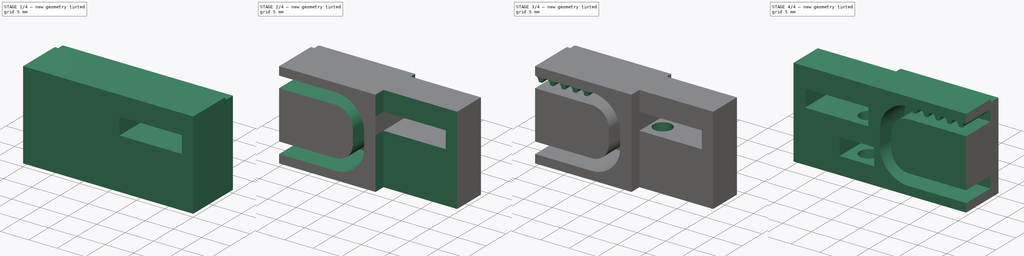
[diagram: build sequence overview — one tinted view per stage of 4, left to right]
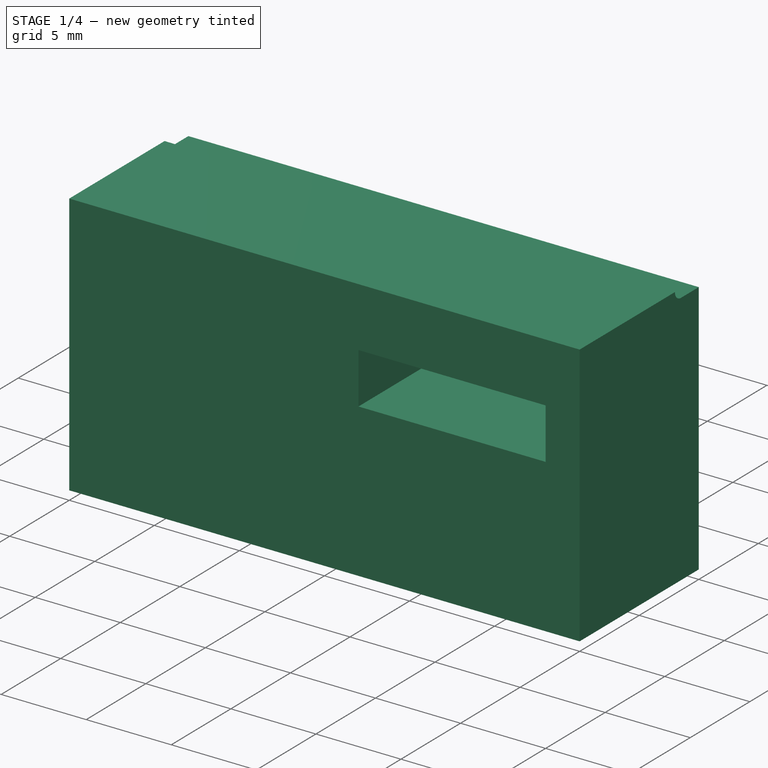
[diagram: stage 1 of 4 — iso view after this stage's code; geometry added in this stage tinted green]
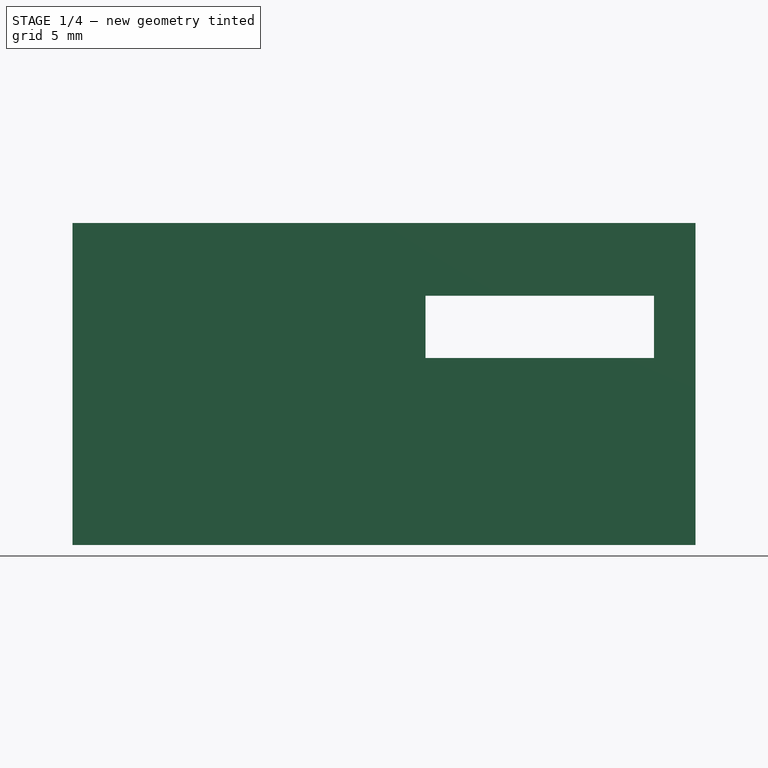
[diagram: stage 1 of 4 — front view after this stage's code; geometry added in this stage tinted green]
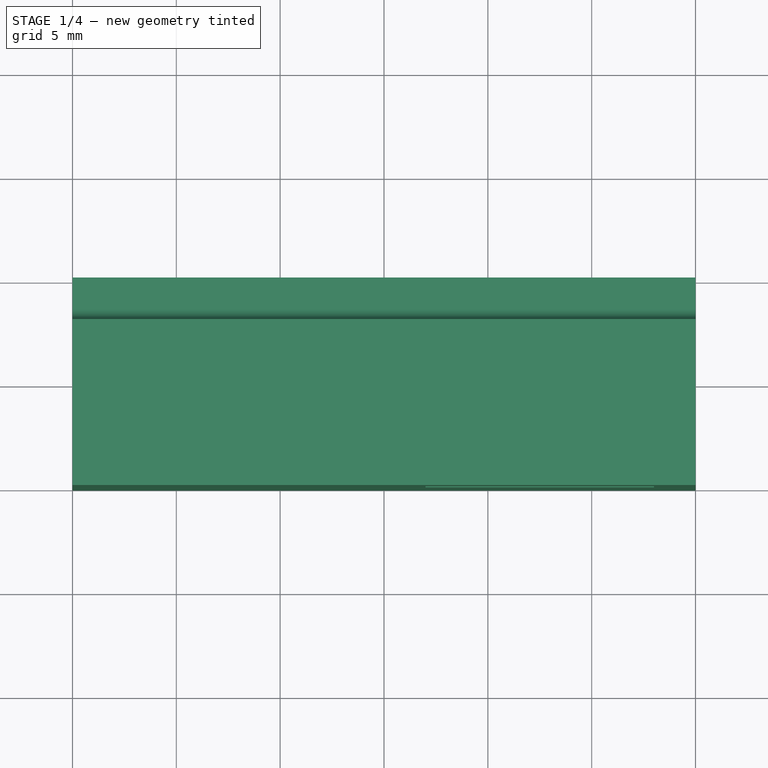
[diagram: stage 1 of 4 — top view after this stage's code; geometry added in this stage tinted green]
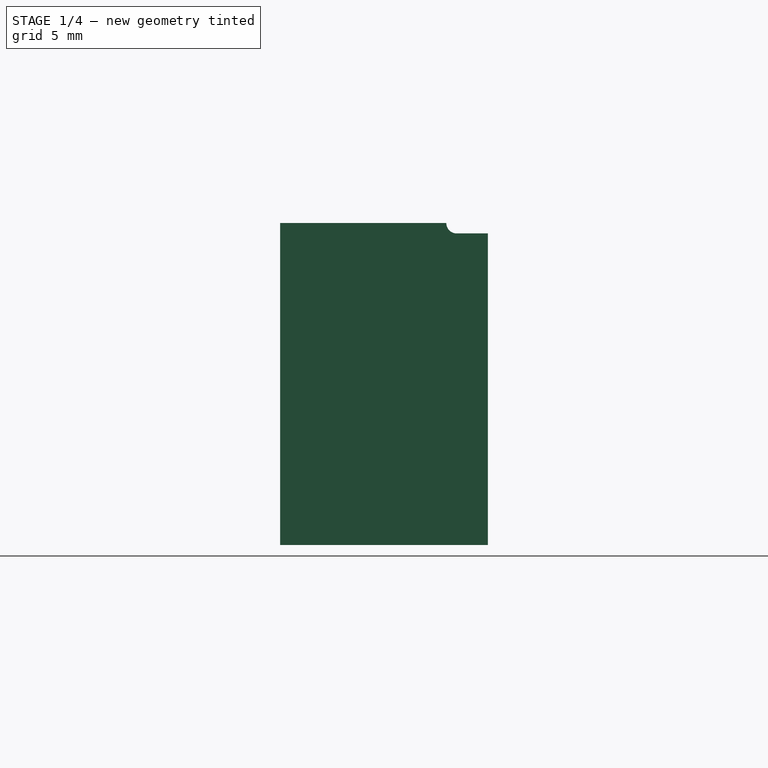
[diagram: stage 1 of 4 — right view after this stage's code; geometry added in this stage tinted green]
FCSTD DOCUMENT  (FreeCAD 0.18R13661 (Git))
Label: RightBeltLock
License: All rights reserved
LicenseURL: http://en.wikipedia.org/wiki/All_rights_reserved
objects: Sketcher::SketchObject×11, PartDesign::Plane×9, PartDesign::Pocket×8, PartDesign::Pad×2, PartDesign::Body×1, Part::Mirroring×1
note: 42 computed .brp shape members not serialized (recipe doc carries the construction recipe); baked Part::Feature solids carry a one-line shape summary decoded from their .brp

FEATURE [Sketcher::SketchObject] Sketch  label="BaseSketch"
  MapMode = 5
  Placement = pos=(0,0,0) rot=(0.57735,0.57735,0.57735;2.0944rad)
  Support = -> [YZ_Plane]
  sketch-geometry (4):
    g0: LineSegment StartX=0 StartY=0 StartZ=0 EndX=10 EndY=0 EndZ=0
    g1: LineSegment StartX=10 StartY=0 StartZ=0 EndX=10 EndY=15.5 EndZ=0
    g2: LineSegment StartX=10 StartY=15.5 StartZ=0 EndX=0 EndY=15.5 EndZ=0
    g3: LineSegment StartX=0 StartY=15.5 StartZ=0 EndX=0 EndY=0 EndZ=0
  constraints (11):
    c: Horizontal(g0)
    c: Distance(g2,g1) = 10
    c: Distance(g2,g-1) = 15.5
    c: Coincident(g0,g3)
    c: Coincident(g0,g-1)
    c: Equal(g3,g1)
    c: Equal(g0,g2)
    c: Perpendicular(g0,g3)
    c: Coincident(g0,g1)
    c: Coincident(g1,g2)
    c: Coincident(g2,g3)
FEATURE [PartDesign::Pad] Pad  label="BasePad"
  Length = 30
  Length2 = 100
  Placement = pos=(0,0,0) rot=(0.57735,0.57735,0.57735;2.0944rad)
  Profile = -> Sketch
  Type = 0
FEATURE [PartDesign::Plane] DatumPlane001  label="Facet2Plane"
  AttachmentOffset = pos=(0,0,0) rot=(0,0,1;1.5708rad)
  MapMode = 6
  Placement = pos=(-1e-12,10,15.5) rot=(-0.57735,-0.57735,0.57735;2.0944rad)
  Support = -> [Pad]
FEATURE [Sketcher::SketchObject] Sketch002  label="Facet2ASketch"
  MapMode = 5
  Placement = pos=(-1e-12,10,15.5) rot=(0.57735,0.57735,-0.57735;4.18879rad)
  Support = -> [DatumPlane001]
  sketch-geometry (5):
    g0: ArcOfCircle CenterX=0 CenterY=0 CenterZ=0 NormalX=0 NormalY=0 NormalZ=1 AngleXU=0 Radius=0.5 StartAngle=4.71239 EndAngle=7.85398
    g1: ArcOfCircle CenterX=-1.5 CenterY=0 CenterZ=0 NormalX=0 NormalY=0 NormalZ=1 AngleXU=0 Radius=0.5 StartAngle=1.5708 EndAngle=4.71239
    g2: LineSegment StartX=0 StartY=0.5 StartZ=0 EndX=-1.5 EndY=0.5 EndZ=0
    g3: LineSegment StartX=0 StartY=-0.5 StartZ=0 EndX=-1.5 EndY=-0.5 EndZ=0
    g4: GeomPoint X=-2 Y=0 Z=0
  constraints (11):
    c: Tangent(g0,g3) = 1.5708
    c: Tangent(g0,g2) = -1.5708
    c: Tangent(g2,g1) = -1.5708
    c: Tangent(g3,g1) = 1.5708
    c: Horizontal(g2)
    c: Equal(g0,g1)
    c: Coincident(g0,g-1)
    c: PointOnObject(g4,g-1)
    c: PointOnObject(g4,g1)
    c: Distance(g-1,g4) = 2
    c: DistanceY(g0,g-1) = 0.5
FEATURE [PartDesign::Pocket] Pocket001  label="Facet2APocket"
  BaseFeature = -> Pad
  Length = 5
  Length2 = 100
  Placement = pos=(0,0,0) rot=(0.57735,0.57735,0.57735;2.0944rad)
  Profile = -> Sketch002
  Type = 1
FEATURE [PartDesign::Plane] DatumPlane002  label="ClampPlane"
  MapMode = 6
  Placement = pos=(30,-2e-12,15.5) rot=(0.57735,0.57735,-0.57735;2.0944rad)
  Support = -> [Pad]
FEATURE [Sketcher::SketchObject] Sketch003  label="ClampSketch"
  MapMode = 5
  Placement = pos=(30,-2e-12,15.5) rot=(0.57735,0.57735,-0.57735;2.0944rad)
  Support = -> [DatumPlane002]
  sketch-geometry (8):
    g0: LineSegment StartX=6.5 StartY=-2 StartZ=0 EndX=3.5 EndY=-2 EndZ=0
    g1: LineSegment StartX=3.5 StartY=-2 StartZ=0 EndX=3.5 EndY=-13 EndZ=0
    g2: LineSegment StartX=6.5 StartY=-2 StartZ=0 EndX=6.5 EndY=-13 EndZ=0
    g3: LineSegment StartX=6.5 StartY=-13 StartZ=0 EndX=3.5 EndY=-13 EndZ=0
    g4: LineSegment StartX=3.5 StartY=0 StartZ=0 EndX=6.5 EndY=0 EndZ=0
    g5: LineSegment StartX=6.5 StartY=0 StartZ=0 EndX=6.5 EndY=1.99064 EndZ=0
    g6: LineSegment StartX=6.5 StartY=1.99064 StartZ=0 EndX=3.5 EndY=1.99064 EndZ=0
    g7: LineSegment StartX=3.5 StartY=1.99064 StartZ=0 EndX=3.5 EndY=0 EndZ=0
  constraints (23):
    c: Coincident(g0,g1)
    c: Horizontal(g0)
    c: Vertical(g1)
    c: Distance(g0) = 3
    c: Vertical(g2)
    c: Coincident(g3,g2)
    c: Coincident(g3,g1)
    c: Horizontal(g3)
    c: Coincident(g2,g0)
    c: Coincident(g4,g5)
    c: Coincident(g5,g6)
    c: Coincident(g6,g7)
    c: Coincident(g7,g4)
    c: Horizontal(g4)
    c: Horizontal(g6)
    c: Vertical(g5)
    c: Vertical(g7)
    c: PointOnObject(g4,g-1)
    c: DistanceX(g0,g4) = 0
    c: DistanceX(g0,g4) = 0
    c: DistanceY(g0,g-1) = 2
    c: DistanceX(g-1,g0) = 3.5
    c: Distance(g0,g1) = 11
FEATURE [PartDesign::Pocket] Pocket002  label="ClampPocket"
  BaseFeature = -> Pocket001
  Length = 5
  Length2 = 100
  Placement = pos=(0,0,0) rot=(0.57735,0.57735,0.57735;2.0944rad)
  Profile = -> Sketch003
  Type = 1
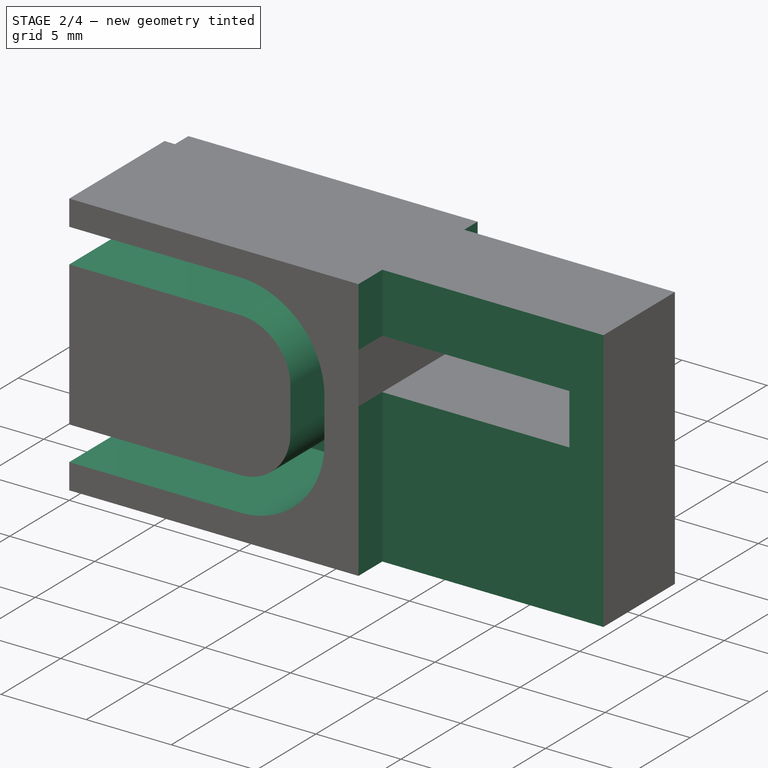
[diagram: stage 2 of 4 — iso view after this stage's code; geometry added in this stage tinted green]
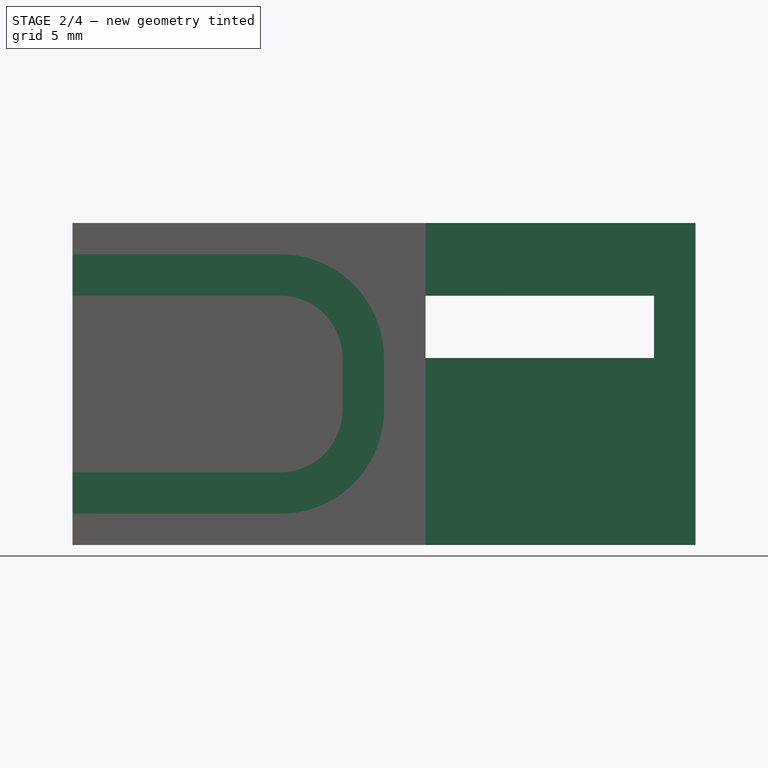
[diagram: stage 2 of 4 — front view after this stage's code; geometry added in this stage tinted green]
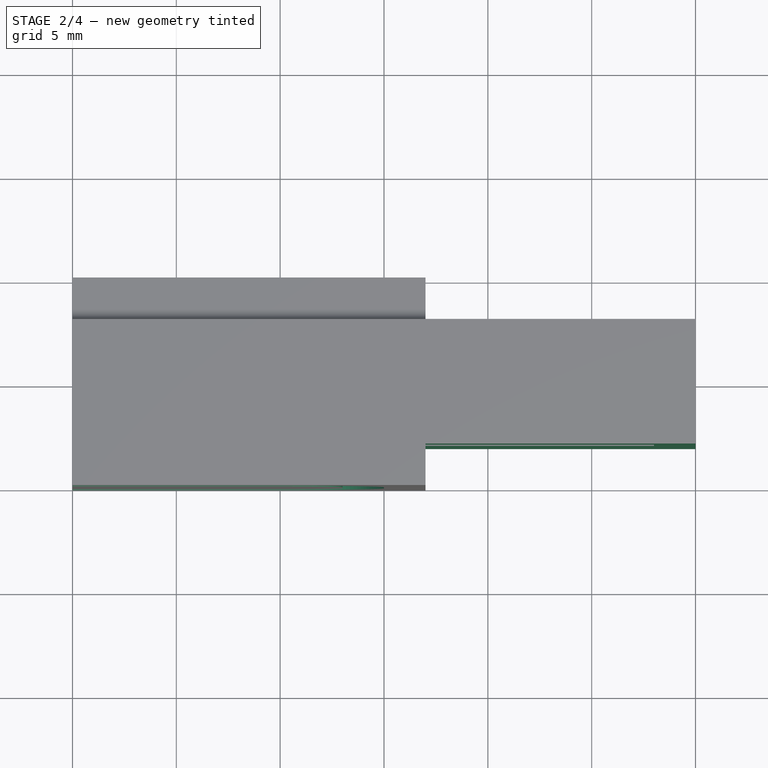
[diagram: stage 2 of 4 — top view after this stage's code; geometry added in this stage tinted green]
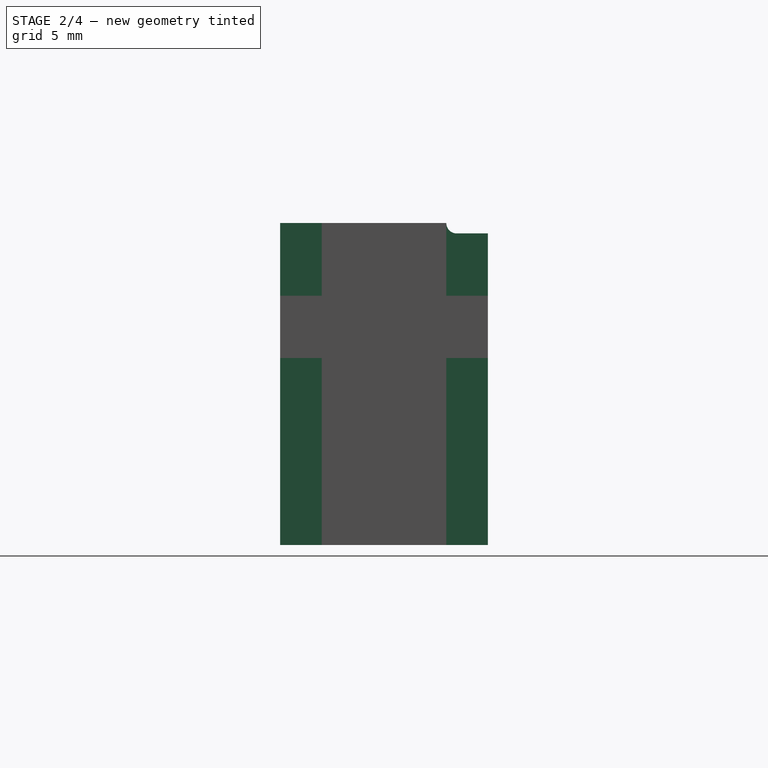
[diagram: stage 2 of 4 — right view after this stage's code; geometry added in this stage tinted green]
FEATURE [PartDesign::Plane] DatumPlane003  label="ClampCut1Plane"
  MapMode = 6
  Placement = pos=(30,-2e-12,15.5) rot=(0,0,-1;1.5708rad)
  Support = -> [Pad]
FEATURE [Sketcher::SketchObject] Sketch004  label="ClampCut1Sketch"
  MapMode = 5
  Placement = pos=(30,-2e-12,15.5) rot=(0,0,-1;1.5708rad)
  Support = -> [DatumPlane003]
  sketch-geometry (4):
    g0: LineSegment StartX=0 StartY=0 StartZ=0 EndX=-2 EndY=0 EndZ=0
    g1: LineSegment StartX=-2 StartY=0 StartZ=0 EndX=-2 EndY=-13 EndZ=0
    g2: LineSegment StartX=-2 StartY=-13 StartZ=0 EndX=0 EndY=-13 EndZ=0
    g3: LineSegment StartX=0 StartY=-13 StartZ=0 EndX=0 EndY=0 EndZ=0
  constraints (11):
    c: Coincident(g0,g1)
    c: Coincident(g1,g2)
    c: Coincident(g2,g3)
    c: Coincident(g3,g0)
    c: Horizontal(g0)
    c: Horizontal(g2)
    c: Vertical(g1)
    c: Vertical(g3)
    c: Coincident(g0,g-1)
    c: DistanceY(g2,g-1) = 13
    c: DistanceX(g0,g-1) = 2
FEATURE [PartDesign::Pocket] Pocket003  label="ClampCut1Pocket"
  BaseFeature = -> Pocket002
  Length = 5
  Length2 = 100
  Placement = pos=(0,0,0) rot=(0.57735,0.57735,0.57735;2.0944rad)
  Profile = -> Sketch004
  Type = 1
FEATURE [PartDesign::Plane] DatumPlane004  label="ClampCut2Plane"
  MapMode = 6
  Placement = pos=(30,10,15.5) rot=(0,0,-1;1.5708rad)
  Support = -> [Pad]
FEATURE [Sketcher::SketchObject] Sketch005  label="ClampCut2Sketch"
  MapMode = 5
  Placement = pos=(30,10,15.5) rot=(0,0,-1;1.5708rad)
  Support = -> [DatumPlane004]
  sketch-geometry (4):
    g0: LineSegment StartX=0 StartY=0 StartZ=0 EndX=2 EndY=0 EndZ=0
    g1: LineSegment StartX=2 StartY=0 StartZ=0 EndX=2 EndY=-13 EndZ=0
    g2: LineSegment StartX=2 StartY=-13 StartZ=0 EndX=0 EndY=-13 EndZ=0
    g3: LineSegment StartX=0 StartY=-13 StartZ=0 EndX=0 EndY=0 EndZ=0
  constraints (11):
    c: Coincident(g0,g1)
    c: Coincident(g1,g2)
    c: Coincident(g2,g3)
    c: Coincident(g3,g0)
    c: Horizontal(g0)
    c: Horizontal(g2)
    c: Vertical(g1)
    c: Vertical(g3)
    c: Coincident(g0,g-1)
    c: DistanceX(g-1,g0) = 2
    c: DistanceY(g2,g-1) = 13
FEATURE [PartDesign::Pocket] Pocket004  label="ClampCut2Pocket"
  BaseFeature = -> Pocket003
  Length = 5
  Length2 = 100
  Placement = pos=(0,0,0) rot=(0.57735,0.57735,0.57735;2.0944rad)
  Profile = -> Sketch005
  Type = 1
FEATURE [PartDesign::Plane] DatumPlane005  label="BeltNotchPlane"
  MapMode = 6
  Placement = pos=(-2e-12,2e-12,15.5) rot=(0.57735,0.57735,-0.57735;2.0944rad)
  Support = -> [Pad]
FEATURE [Sketcher::SketchObject] Sketch006  label="BeltNotchSketch"
  MapMode = 5
  Placement = pos=(-2e-12,2e-12,15.5) rot=(0.57735,0.57735,-0.57735;2.0944rad)
  Support = -> [DatumPlane005]
  sketch-geometry (18):
    g0: LineSegment StartX=1.5 StartY=0 StartZ=0 EndX=3.5 EndY=0 EndZ=0
    g1: LineSegment StartX=3.5 StartY=0 StartZ=0 EndX=3.5 EndY=10 EndZ=0
    g2: LineSegment StartX=1.5 StartY=10 StartZ=0 EndX=1.5 EndY=0 EndZ=0
    g3: LineSegment StartX=12 StartY=10 StartZ=0 EndX=12 EndY=0 EndZ=0
    g4: LineSegment StartX=14 StartY=10 StartZ=0 EndX=14 EndY=0 EndZ=0
    g5: LineSegment StartX=12 StartY=0 StartZ=0 EndX=14 EndY=0 EndZ=0
    g6: ArcOfCircle CenterX=9 CenterY=10 CenterZ=0 NormalX=0 NormalY=0 NormalZ=1 AngleXU=0 Radius=3 StartAngle=0 EndAngle=1.5708
    g7: ArcOfCircle CenterX=6.5 CenterY=10 CenterZ=0 NormalX=0 NormalY=0 NormalZ=1 AngleXU=0 Radius=3 StartAngle=1.5708 EndAngle=3.14159
    g8: LineSegment [constr] StartX=6.5 StartY=10 StartZ=0 EndX=3.5 EndY=10 EndZ=0
    g9: LineSegment [constr] StartX=12 StartY=10 StartZ=0 EndX=9 EndY=10 EndZ=0
    g10: LineSegment [constr] StartX=6.5 StartY=10 StartZ=0 EndX=6.5 EndY=13 EndZ=0
    g11: LineSegment [constr] StartX=9 StartY=10 StartZ=0 EndX=9 EndY=13 EndZ=0
    g12: LineSegment StartX=6.5 StartY=13 StartZ=0 EndX=9 EndY=13 EndZ=0
    g13: ArcOfCircle CenterX=6.5 CenterY=10 CenterZ=0 NormalX=0 NormalY=0 NormalZ=1 AngleXU=0 Radius=5 StartAngle=1.5708 EndAngle=3.14159
    g14: ArcOfCircle CenterX=9 CenterY=10 CenterZ=0 NormalX=0 NormalY=0 NormalZ=1 AngleXU=0 Radius=5 StartAngle=0 EndAngle=1.5708
    g15: LineSegment StartX=6.5 StartY=15 StartZ=0 EndX=9 EndY=15 EndZ=0
    g16: LineSegment [constr] StartX=6.5 StartY=13 StartZ=0 EndX=6.5 EndY=15 EndZ=0
    g17: LineSegment [constr] StartX=9 StartY=13 StartZ=0 EndX=9 EndY=15 EndZ=0
  constraints (50):
    c: Coincident(g0,g1)
    c: Coincident(g2,g0)
    c: PointOnObject(g0,g-1)
    c: DistanceX(g-1,g0) = 1.5
    c: DistanceX(g2,g1) = 2
    c: DistanceY(g0,g2) = 10
    c: Coincident(g5,g3)
    c: Coincident(g5,g4)
    c: DistanceX(g0,g4) = 12.5
    c: Equal(g0,g5)
    c: Horizontal(g0)
    c: Perpendicular(g0,g2)
    c: Perpendicular(g0,g1)
    c: Perpendicular(g5,g3)
    c: Perpendicular(g5,g4)
    c: Equal(g2,g1)
    c: Equal(g1,g3)
    c: Equal(g3,g4)
    c: Coincident(g6,g3)
    c: Coincident(g7,g1)
    c: Coincident(g8,g7)
    c: Coincident(g8,g1)
    c: Perpendicular(g1,g8)
    c: Coincident(g9,g3)
    c: Coincident(g9,g6)
    c: Perpendicular(g3,g9)
    c: Coincident(g10,g7)
    c: Coincident(g7,g10)
    c: Angle(g10,g8) = 1.5708
    c: Distance(g8) = 3
    c: Equal(g9,g8)
    c: Coincident(g11,g6)
    c: Coincident(g11,g6)
    c: Angle(g9,g11) = 1.5708
    c: Coincident(g12,g7)
    c: Coincident(g12,g6)
    c: Perpendicular(g1,g12)
    c: Parallel(g10,g11)
    c: Coincident(g13,g7)
    c: Coincident(g13,g2)
    c: Coincident(g14,g6)
    c: Coincident(g14,g4)
    c: Coincident(g15,g13)
    c: Coincident(g15,g14)
    c: Coincident(g16,g7)
    c: Coincident(g16,g13)
    c: Coincident(g17,g6)
    c: Coincident(g17,g14)
    c: Parallel(g10,g16)
    c: Parallel(g11,g17)
FEATURE [PartDesign::Pocket] Pocket005  label="BeltNotchPocket"
  BaseFeature = -> Pocket004
  Length = 8
  Length2 = 100
  Placement = pos=(0,0,0) rot=(0.57735,0.57735,0.57735;2.0944rad)
  Profile = -> Sketch006
  Type = 0
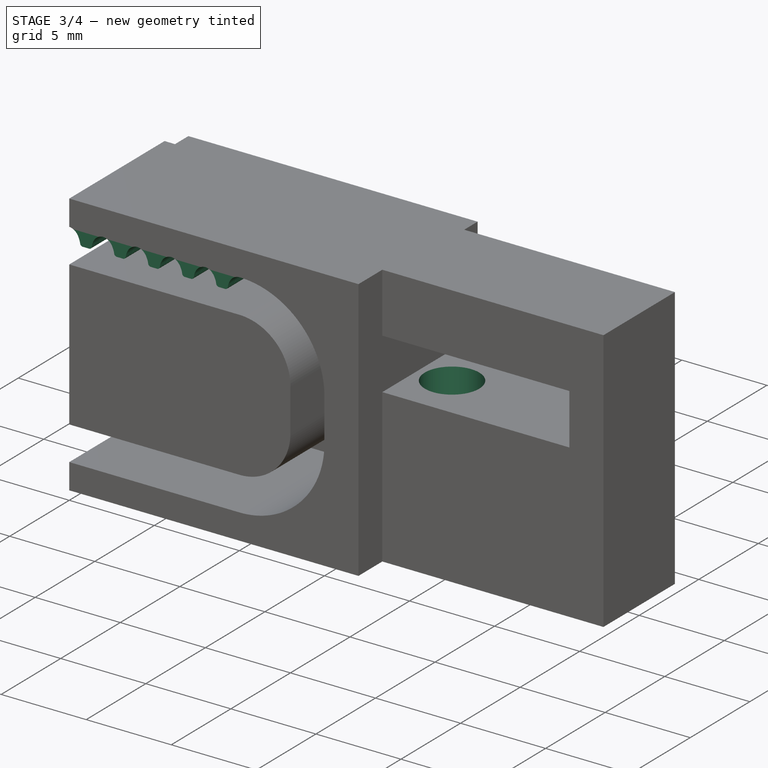
[diagram: stage 3 of 4 — iso view after this stage's code; geometry added in this stage tinted green]
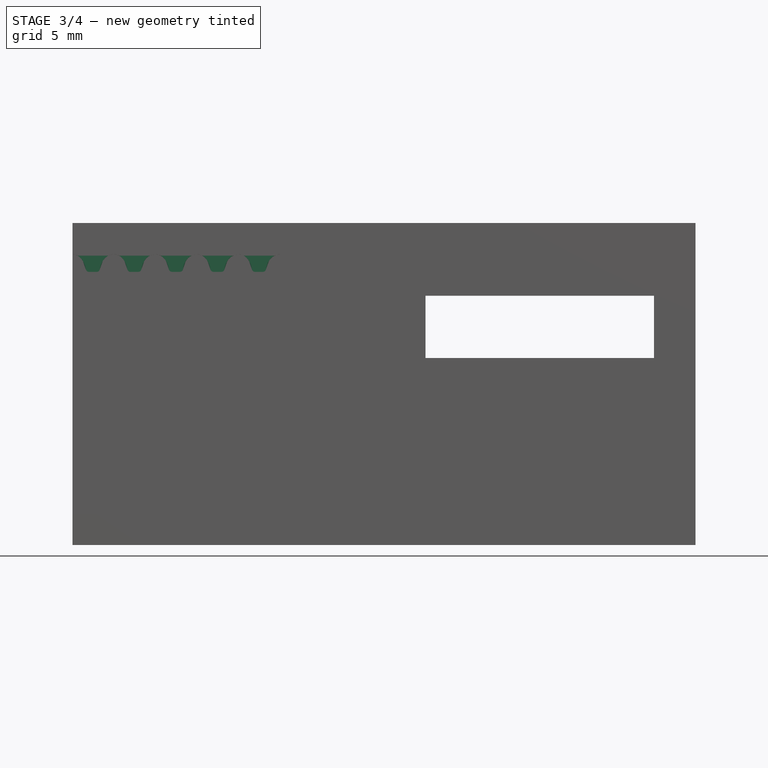
[diagram: stage 3 of 4 — front view after this stage's code; geometry added in this stage tinted green]
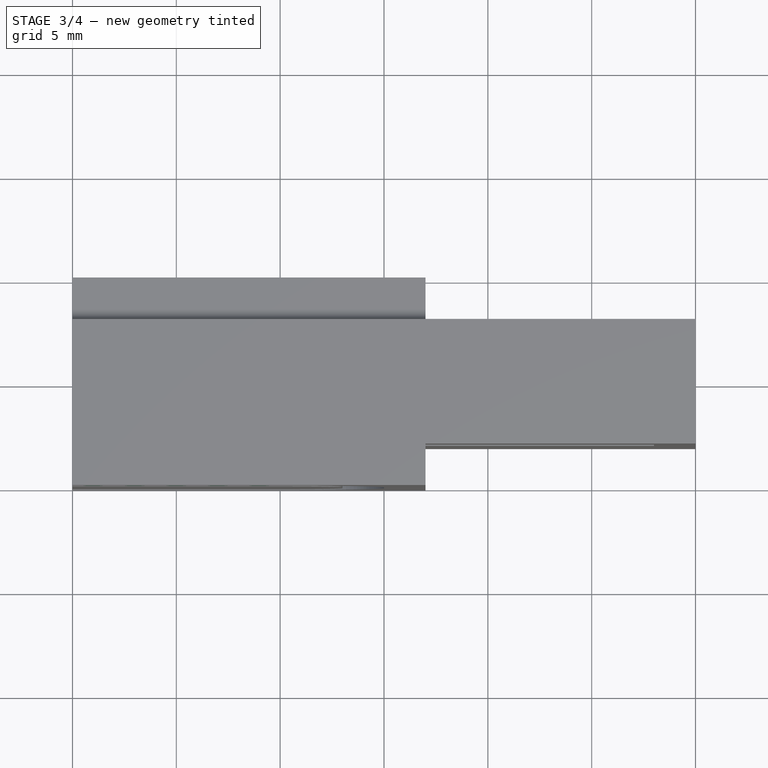
[diagram: stage 3 of 4 — top view after this stage's code; geometry added in this stage tinted green]
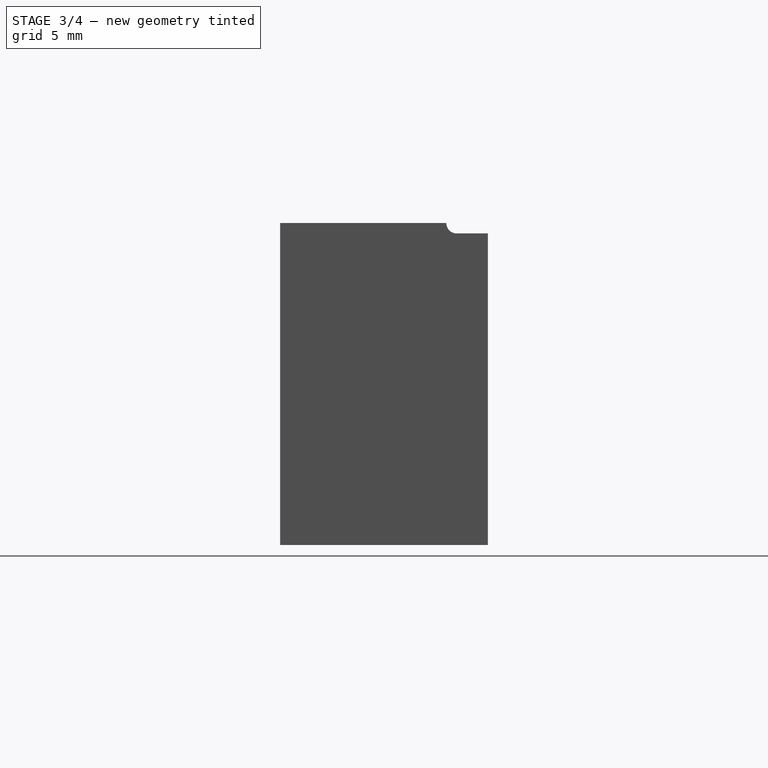
[diagram: stage 3 of 4 — right view after this stage's code; geometry added in this stage tinted green]
FEATURE [PartDesign::Plane] DatumPlane007  label="TopTeethPlane"
  MapMode = 6
  Placement = pos=(-1e-12,8,14) rot=(1,0,0;1.5708rad)
  Support = -> [Pocket005]
FEATURE [Sketcher::SketchObject] Sketch008  label="TopTeethSketch"
  MapMode = 5
  Placement = pos=(-1e-12,8,14) rot=(1,0,0;1.5708rad)
  Support = -> [DatumPlane007]
  sketch-geometry (8):
    g0: BSplineCurve PolesCount=12 KnotsCount=8 Degree=3 IsPeriodic=0
    g1: BSplineCurve PolesCount=12 KnotsCount=8 Degree=3 IsPeriodic=0
    g2: BSplineCurve PolesCount=12 KnotsCount=8 Degree=3 IsPeriodic=0
    g3: BSplineCurve PolesCount=12 KnotsCount=8 Degree=3 IsPeriodic=0
    g4: BSplineCurve PolesCount=12 KnotsCount=8 Degree=3 IsPeriodic=0
    g5: LineSegment StartX=10 StartY=0 StartZ=0 EndX=10 EndY=1 EndZ=0
    g6: LineSegment StartX=10 StartY=1 StartZ=0 EndX=0 EndY=1 EndZ=0
    g7: LineSegment StartX=0 StartY=1 StartZ=0 EndX=0 EndY=0 EndZ=0
  constraints (19):
    c: Coincident(g1,g0)
    c: PointOnObject(g0,g-1)
    c: PointOnObject(g1,g-1)
    c: PointOnObject(g2,g-1)
    c: PointOnObject(g3,g-1)
    c: PointOnObject(g4,g-1)
    c: Coincident(g5,g4)
    c: Vertical(g5)
    c: Coincident(g6,g5)
    c: Horizontal(g6)
    c: Coincident(g7,g6)
    c: Coincident(g7,g-1)
    c: Vertical(g7)
    c: Distance(g5) = 1
    c: DistanceX(g-1,g0) = 2
    c: DistanceX(g0,g1) = 2
    c: DistanceX(g1,g2) = 2
    c: DistanceX(g2,g3) = 2
    c: DistanceX(g3,g4) = 2
FEATURE [PartDesign::Pad] Pad001  label="TopTeethPad"
  BaseFeature = -> Pocket005
  Length = 11
  Length2 = 100
  Placement = pos=(0,0,0) rot=(0.57735,0.57735,0.57735;2.0944rad)
  Profile = -> Sketch008
  Type = 2
FEATURE [PartDesign::Plane] DatumPlane008  label="ClampSkrewHolePlane"
  MapMode = 6
  Placement = pos=(30,-3e-12,3e-12) rot=(0.707107,0.707107,0;3.14159rad)
  Support = -> [Pad]
FEATURE [Sketcher::SketchObject] Sketch010  label="ClampHoleSketch"
  MapMode = 5
  Placement = pos=(30,-3e-12,3e-12) rot=(0.707107,0.707107,0;3.14159rad)
  Support = -> [DatumPlane008]
  sketch-geometry (1):
    g0: Circle CenterX=5 CenterY=-11 CenterZ=0 NormalX=0 NormalY=0 NormalZ=1 AngleXU=0 Radius=1.6
  constraints (3):
    c: DistanceX(g-1,g0) = 5
    c: DistanceY(g0,g-1) = 11
    c: Radius(g0) = 1.6
FEATURE [PartDesign::Pocket] Pocket006  label="ClampSkrewHolePocket"
  BaseFeature = -> Pad001
  Length = 5
  Length2 = 100
  Offset = 1
  Placement = pos=(0,0,0) rot=(0.57735,0.57735,0.57735;2.0944rad)
  Profile = -> Sketch010
  Type = 2
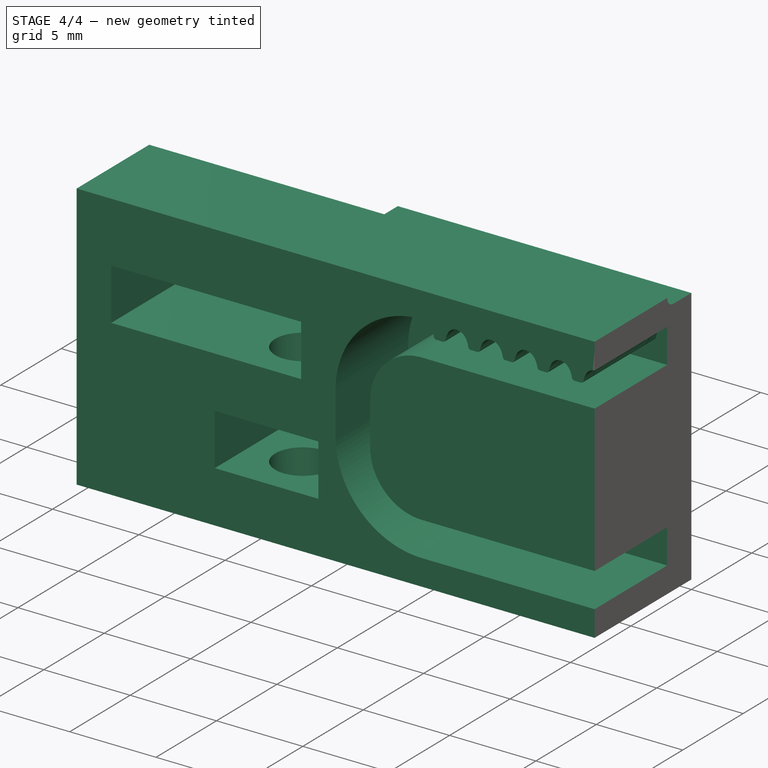
[diagram: stage 4 of 4 — iso view after this stage's code; geometry added in this stage tinted green]
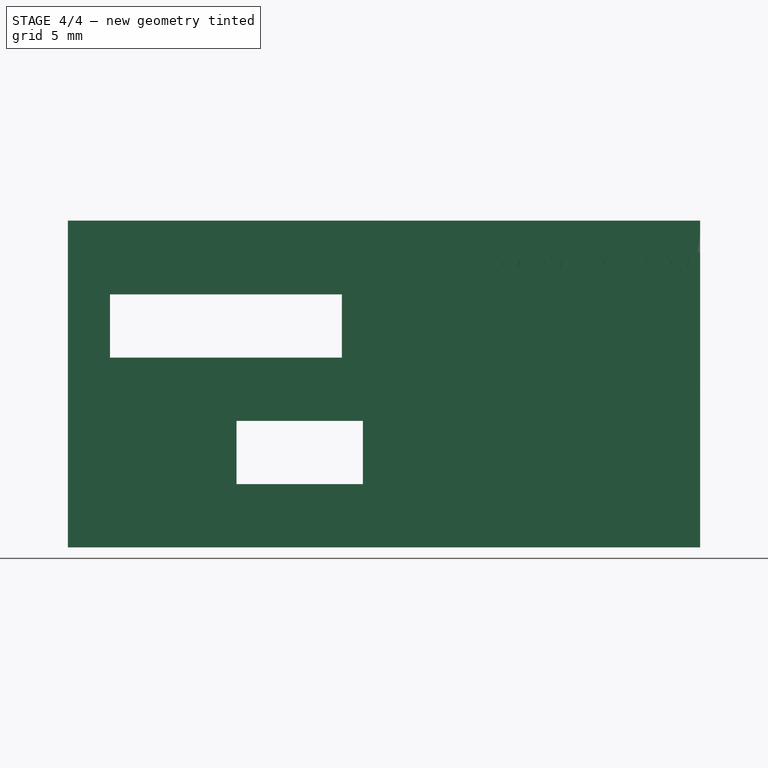
[diagram: stage 4 of 4 — front view after this stage's code; geometry added in this stage tinted green]
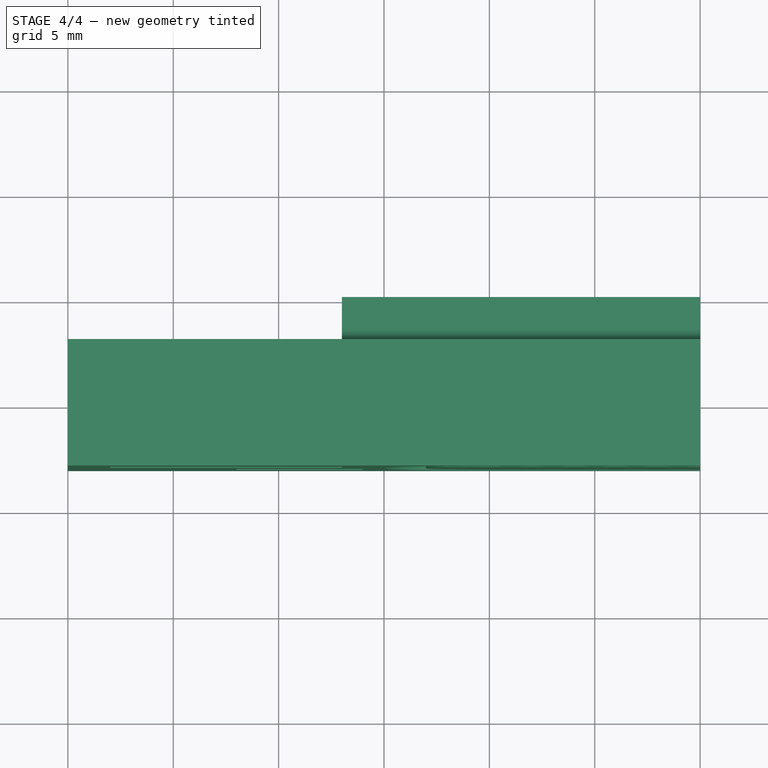
[diagram: stage 4 of 4 — top view after this stage's code; geometry added in this stage tinted green]
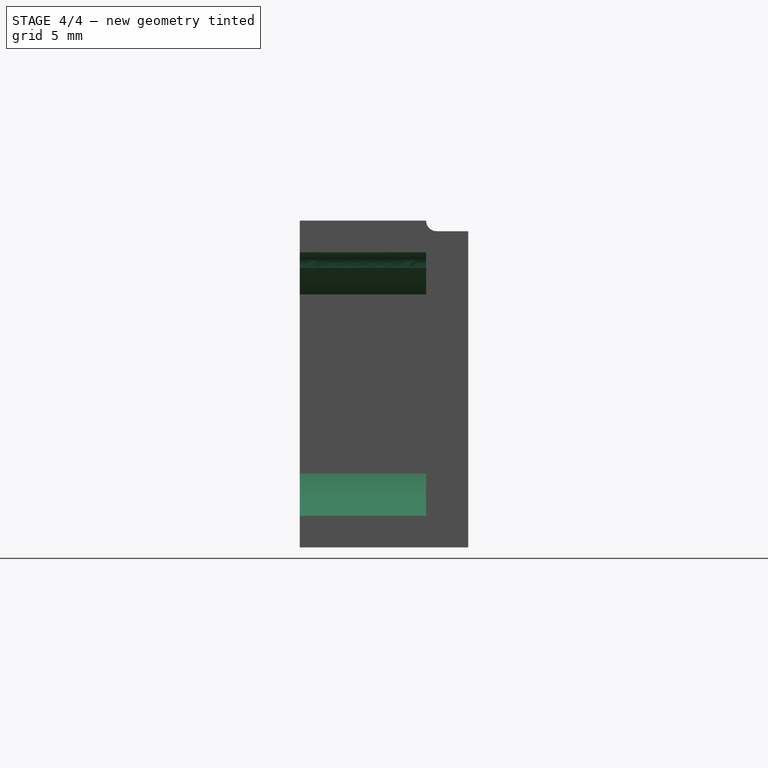
[diagram: stage 4 of 4 — right view after this stage's code; geometry added in this stage tinted green]
FEATURE [Sketcher::SketchObject] Sketch012  label="BottomTeethSketch"
  MapMode = 5
  Placement = pos=(1e-12,8,2.4) rot=(1,0,0;1.5708rad)
  sketch-geometry (8):
    g0: LineSegment StartX=0.75 StartY=0 StartZ=0 EndX=0 EndY=0 EndZ=0
    g1: BSplineCurve PolesCount=12 KnotsCount=8 Degree=3 IsPeriodic=0
    g2: BSplineCurve PolesCount=12 KnotsCount=8 Degree=3 IsPeriodic=0
    g3: BSplineCurve PolesCount=12 KnotsCount=8 Degree=3 IsPeriodic=0
    g4: BSplineCurve PolesCount=12 KnotsCount=8 Degree=3 IsPeriodic=0
    g5: LineSegment StartX=8.75 StartY=0 StartZ=0 EndX=8.75 EndY=-1 EndZ=0
    g6: LineSegment StartX=8.75 StartY=-1 StartZ=0 EndX=0 EndY=-1 EndZ=0
    g7: LineSegment StartX=0 StartY=-1 StartZ=0 EndX=0 EndY=0 EndZ=0
  constraints (23):
    c: Distance(g0) = 0.75
    c: Coincident(g0,g-1)
    c: Coincident(g4,g0)
    c: PointOnObject(g1,g-1)
    c: PointOnObject(g1,g-1)
    c: PointOnObject(g2,g-1)
    c: PointOnObject(g3,g-1)
    c: PointOnObject(g0,g-1)
    c: Coincident(g1,g4)
    c: Coincident(g1,g2)
    c: Coincident(g2,g3)
    c: Coincident(g5,g3)
    c: Vertical(g5)
    c: Coincident(g6,g5)
    c: Horizontal(g6)
    c: Coincident(g7,g6)
    c: Coincident(g7,g-1)
    c: DistanceX(g0,g1) = 2
    c: DistanceX(g1,g1) = 2
    c: DistanceX(g1,g2) = 2
    c: DistanceX(g2,g3) = 2
    c: DistanceY(g5,g5) = 1
    c: Vertical(g7)
FEATURE [PartDesign::Plane] DatumPlane011  label="BeltNotchCutPlane"
  MapMode = 6
  Placement = pos=(17,2,15.5) rot=(0.57735,-0.57735,0.57735;4.18879rad)
  Support = -> [Pocket003]
FEATURE [Sketcher::SketchObject] Sketch013  label="BeltNotchCutSketch"
  MapMode = 5
  Placement = pos=(17,2,15.5) rot=(0.57735,-0.57735,0.57735;4.18879rad)
  Support = -> [DatumPlane011]
  sketch-geometry (4):
    g0: LineSegment StartX=0 StartY=0 StartZ=0 EndX=2 EndY=0 EndZ=0
    g1: LineSegment StartX=2 StartY=0 StartZ=0 EndX=2 EndY=20 EndZ=0
    g2: LineSegment StartX=2 StartY=20 StartZ=0 EndX=0 EndY=20 EndZ=0
    g3: LineSegment StartX=0 StartY=20 StartZ=0 EndX=0 EndY=0 EndZ=0
  constraints (11):
    c: Coincident(g0,g1)
    c: Coincident(g1,g2)
    c: Coincident(g2,g3)
    c: Coincident(g3,g0)
    c: Horizontal(g0)
    c: Horizontal(g2)
    c: Vertical(g1)
    c: Vertical(g3)
    c: Coincident(g0,g-1)
    c: Distance(g0) = 2
    c: Distance(g3) = 20
FEATURE [PartDesign::Pocket] Pocket008  label="BeltNotchCutPocket"
  BaseFeature = -> Pocket006
  Length = 5
  Length2 = 100
  Placement = pos=(0,0,0) rot=(0.57735,0.57735,0.57735;2.0944rad)
  Profile = -> Sketch013
  Type = 1
FEATURE [PartDesign::Plane] DatumPlane012  label="ClampNutHolePlane"
  AttachmentOffset = pos=(0,0,-3) rot=(0,0,1;0rad)
  MapMode = 6
  Placement = pos=(30,-3e-12,3) rot=(0.707107,0.707107,0;3.14159rad)
  Support = -> [Pad]
FEATURE [Sketcher::SketchObject] Sketch014  label="ClampNutHoleSketch"
  MapMode = 5
  Placement = pos=(30,-3e-12,3) rot=(0.707107,0.707107,0;3.14159rad)
  Support = -> [DatumPlane012]
  sketch-geometry (9):
    g0: GeomPoint X=5 Y=-11 Z=0
    g1: LineSegment [constr] StartX=8 StartY=-14 StartZ=0 EndX=8 EndY=-8 EndZ=0
    g2: LineSegment StartX=8 StartY=-8 StartZ=0 EndX=2 EndY=-8 EndZ=0
    g3: LineSegment StartX=2 StartY=-8 StartZ=0 EndX=2 EndY=-14 EndZ=0
    g4: LineSegment StartX=2 StartY=-14 StartZ=0 EndX=8 EndY=-14 EndZ=0
    g5: Circle [constr] CenterX=5 CenterY=-11 CenterZ=0 NormalX=0 NormalY=0 NormalZ=1 AngleXU=0 Radius=4.24264
    g6: LineSegment StartX=8 StartY=-8 StartZ=0 EndX=18 EndY=-8 EndZ=0
    g7: LineSegment StartX=18 StartY=-8 StartZ=0 EndX=18 EndY=-14 EndZ=0
    g8: LineSegment StartX=18 StartY=-14 StartZ=0 EndX=8 EndY=-14 EndZ=0
  constraints (24):
    c: DistanceY(g0,g-1) = 11
    c: Coincident(g1,g2)
    c: Coincident(g2,g3)
    c: Coincident(g3,g4)
    c: Coincident(g4,g1)
    c: Equal(g1,g2)
    c: Equal(g1,g3)
    c: Equal(g1,g4)
    c: PointOnObject(g1,g5)
    c: PointOnObject(g2,g5)
    c: PointOnObject(g3,g5)
    c: PointOnObject(g4,g5)
    c: Coincident(g5,g0)
    c: Horizontal(g2)
    c: Distance(g2) = 6
    c: DistanceX(g-1,g0) = 5
    c: Coincident(g6,g1)
    c: Coincident(g7,g6)
    c: Coincident(g8,g7)
    c: Coincident(g8,g1)
    c: Perpendicular(g1,g6)
    c: Perpendicular(g6,g7)
    c: Perpendicular(g8,g7)
    c: Distance(g6) = 10
FEATURE [PartDesign::Pocket] Pocket009  label="ClampNutHolePocket"
  BaseFeature = -> Pocket008
  Length = 3
  Length2 = 100
  Placement = pos=(0,0,0) rot=(0.57735,0.57735,0.57735;2.0944rad)
  Profile = -> Sketch014
  Type = 0
FEATURE [PartDesign::Body] Body  label="FrameBase"
  Group = -> [Sketch,Pad,DatumPlane001,Sketch002,Pocket001,DatumPlane002,Sketch003,Pocket002,DatumPlane003,Sketch004,Pocket003,DatumPlane004,Sketch005,Pocket004,DatumPlane005,Sketch006,Pocket005,DatumPlane007,Sketch008,Pad001,DatumPlane008,Sketch010,Pocket006,DatumPlane011,Sketch013,Pocket008,DatumPlane012,Sketch014,Pocket009]
  Origin = -> Origin
  Tip = -> Pocket009
FEATURE [Part::Mirroring] Part__Mirroring  label="FrameBase - right mirrored"
  Base = (0,0,0)
  Normal = (1,0,0)
  Source = -> Body
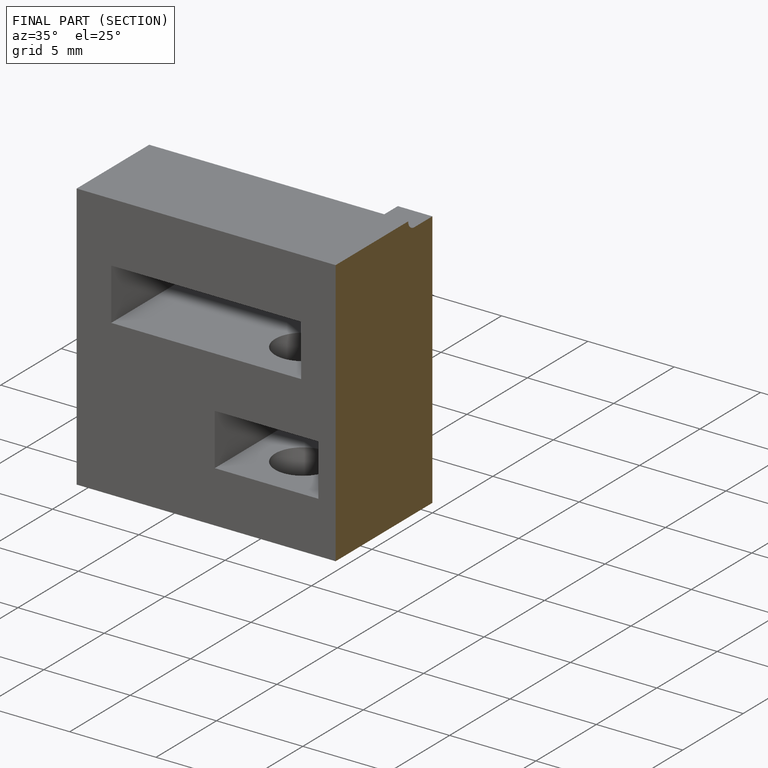
[diagram: finished part — half-section view (interior)]
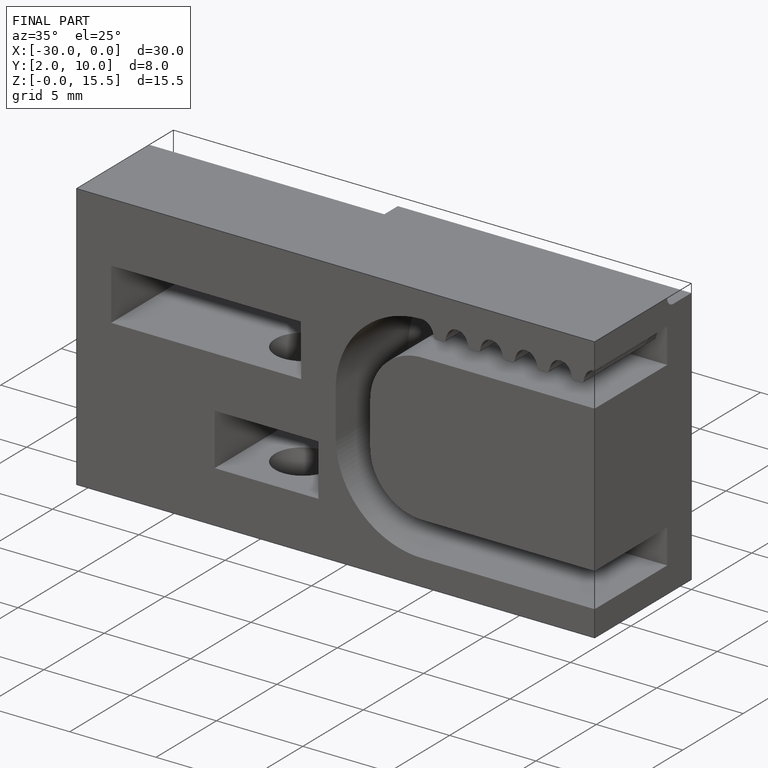
[diagram: finished part — iso view with bounding-box wireframe]
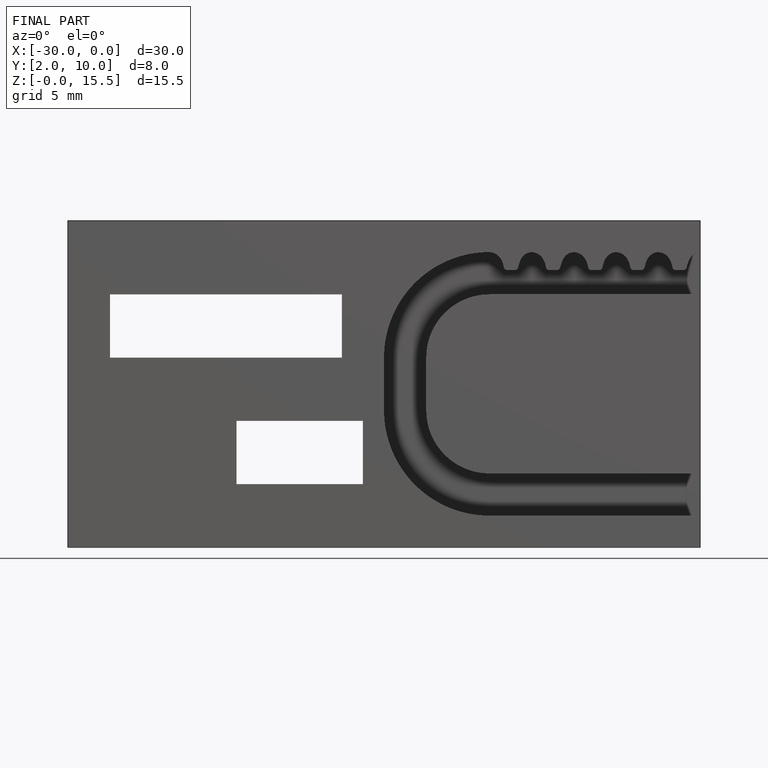
[diagram: finished part — front view with bounding-box wireframe]
